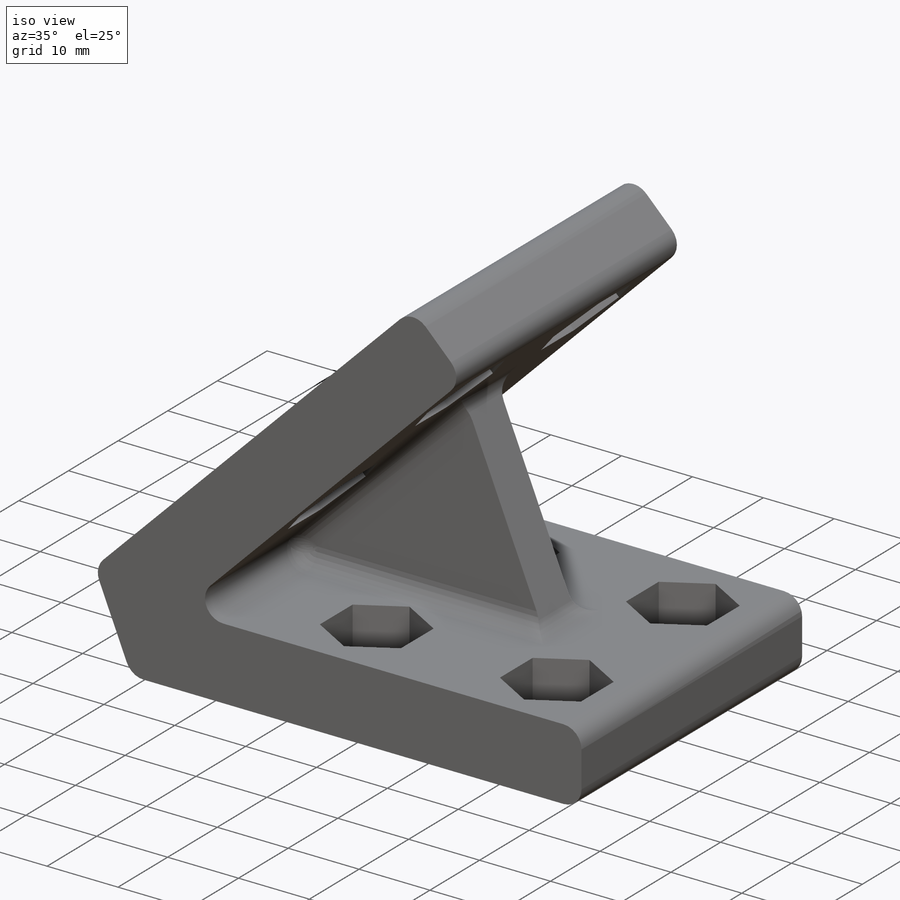
[diagram: iso view]
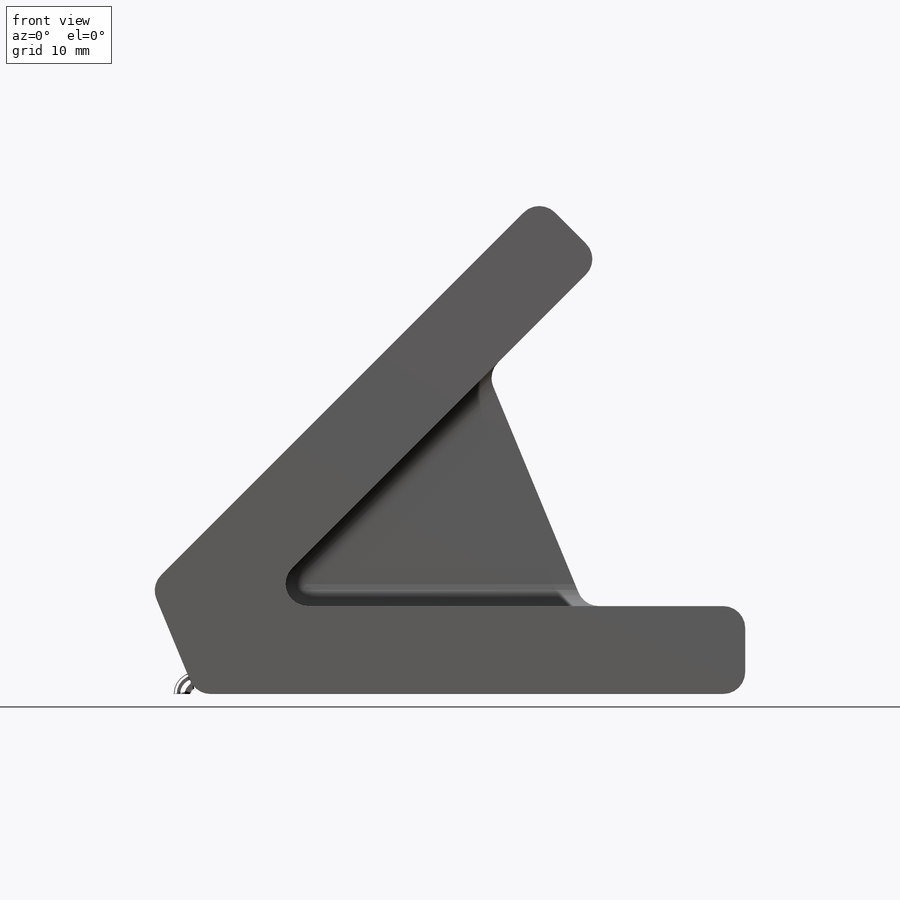
[diagram: front view]
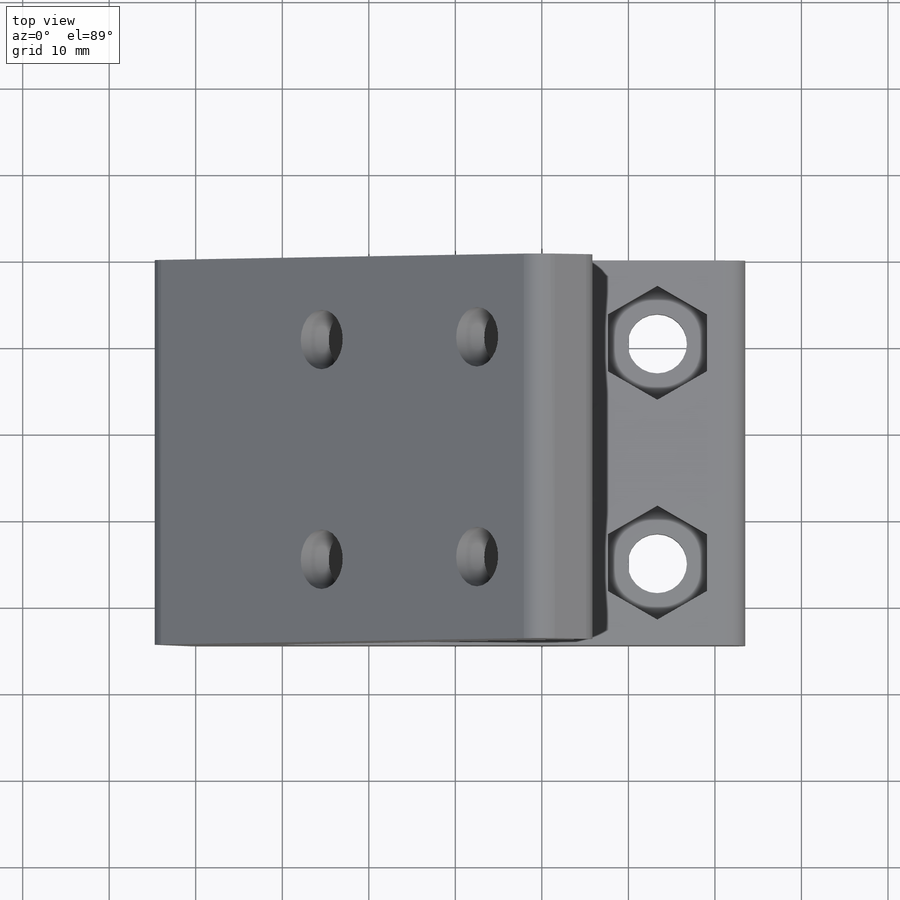
[diagram: top view]
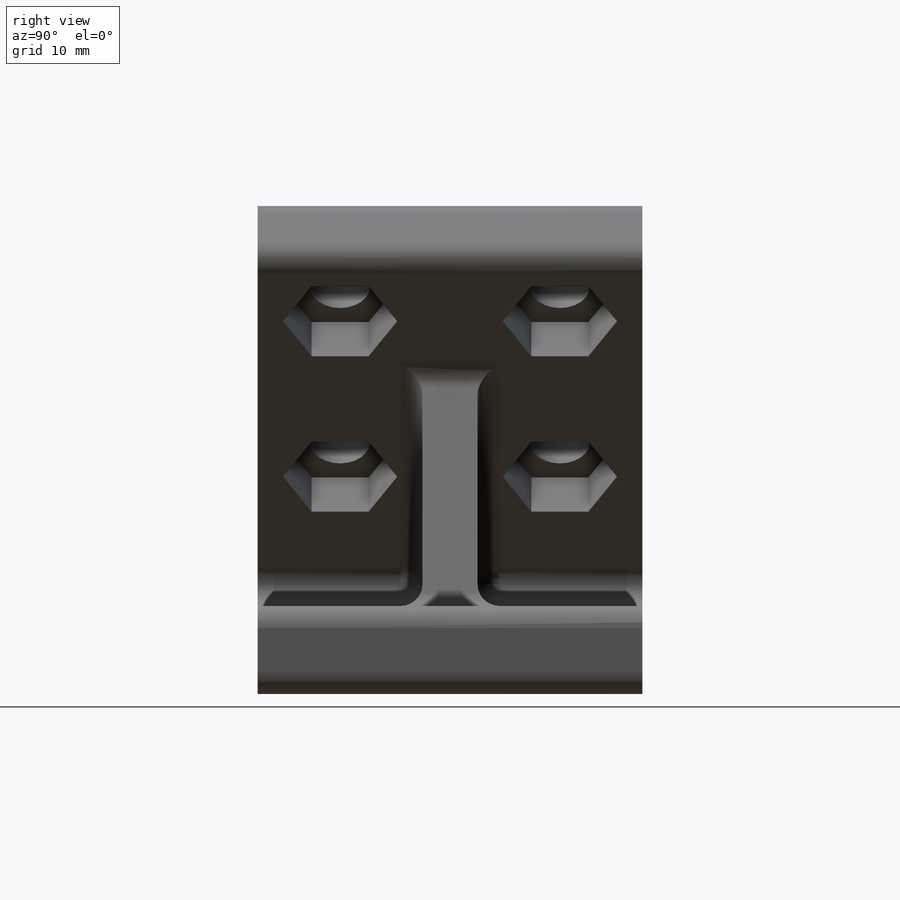
[diagram: right view]
SOLIDWORKS PART (.sldprt)
format: sldprt  version: not decoded by parser v0  size: 357,888 bytes
history: native  units: mm
features: sketch x6, cut_extrude x4, extrude x2, material x1, plane x1, fillet x1 (+13 scaffold rows collapsed)
feature tree (28):
  scaffold x13  (default folders/planes/origin — collapsed)
  material  "ABS"
  sketch  "Sketch1"  dims[c1.D1=~51.670345mm c2.D1=45.0deg c2.D2=10.16mm c2.D3=63.5mm c2.D4=10.16mm]
  extrude  "Boss-Extrude1"  Depth=44.45mm
  sketch  "Sketch2"  dims[D2=6.858mm D1=25.4mm D3=10.16mm]
  cut_extrude  "Cut-Extrude1"  Depth=44.45mm
  sketch  "Sketch3"  dims[D2=6.858mm D1=25.4mm D3=10.16mm]
  cut_extrude  "Cut-Extrude2"  Depth=44.45mm
  sketch  "Sketch4"  dims[c1.D1=11.43mm c1.D4=19.685mm c1.D5=~18.800886mm c1.D6=~22.100443mm c1.D7=25.4mm c1.D8=~28.699557mm c1.D9=~31.999114mm c2.D5=~18.800886mm c2.D2=2.0 c2.D3=2.0]
  cut_extrude  "Cut-Extrude3"  Depth=5.588mm
  sketch  "Sketch5"  dims[c1.D1=11.43mm c1.D4=~3.299557mm c1.D5=~6.599114mm c1.D6=~3.299557mm c1.D7=~6.599114mm c2.D4=~3.299557mm c2.D5=5.715mm c2.D2=2.0 c2.D3=2.0]
  cut_extrude  "Cut-Extrude4"  Depth=5.588mm
  plane  "Plane1"  Offset=22.225mm
  sketch  "Sketch6"  dims[c1.D1=~32.755347mm c2.D1=45.0deg c2.D2=38.1mm]
  extrude  "Boss-Extrude2"  Depth=6.35mm
  fillet  "Fillet1"  Radius=2.54mm
decode coverage: 13 of 13 modeling features carry decoded parameters
note: ~ marks probable driven/reference dimensions
note: suppression state not decoded; provenance and decode notes live in map.json
